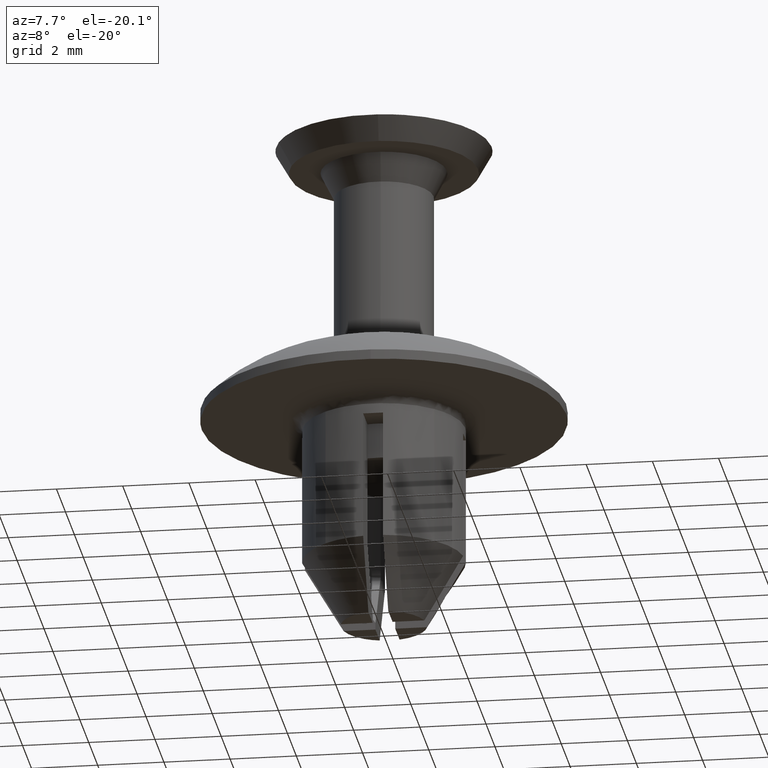
[diagram: clean part render]
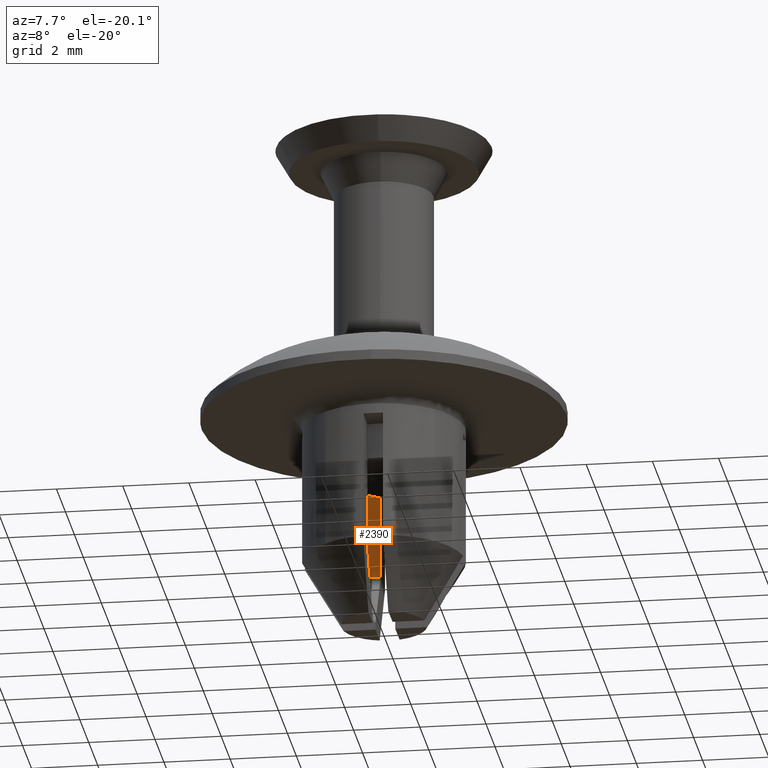
[diagram: same view with one face highlighted and labeled with its STEP entity id]
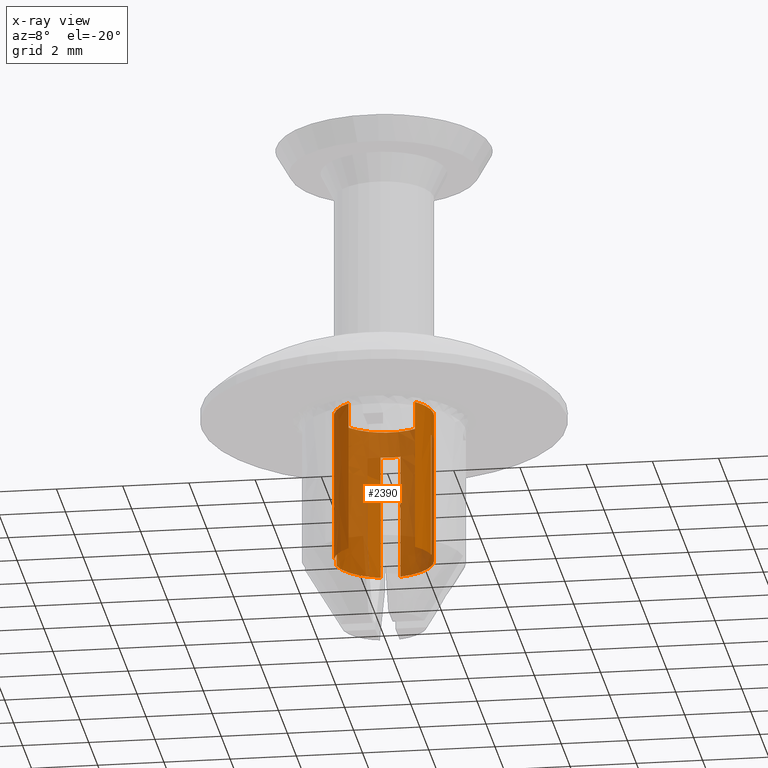
[diagram: x-ray of the same camera — body ghosted, the highlighted face saturated]
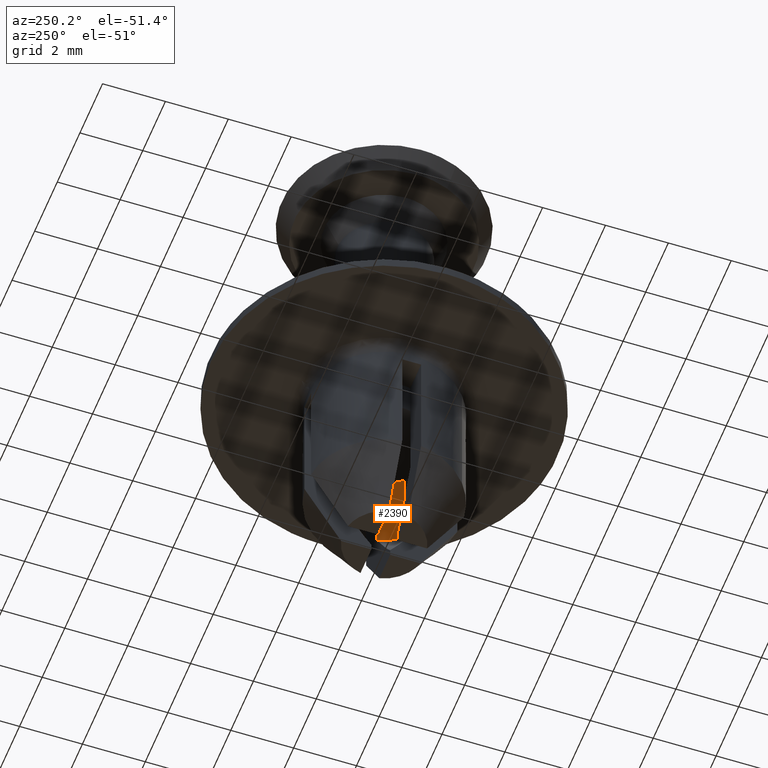
[diagram: same view with one face highlighted and labeled with its STEP entity id]
A machine part, auxiliary view. The second image highlights one B-rep face of the part: STEP entity #2390.
The next image is the same camera in x-ray: the body ghosted, the highlighted face saturated — about 52% of this face is hidden behind the body in this view.
A second angle (auxiliary view) of the same face is appended — the face is thin or edge-on in the first view.
In plain terms, the highlighted face is a freeform B-spline surface patch.
Its self-contained STEP definition (entity closure, byte-faithful):
#2046=CARTESIAN_POINT('',(-0.909661278325718,-1.192692902097409,-8.713397459621572));
#2047=VERTEX_POINT('',#2046);
#2063=CARTESIAN_POINT('',(-1.500000000000000,0.0,-8.713397459621570));
#2064=VERTEX_POINT('',#2063);
#2065=CARTESIAN_POINT('',(-0.909661278325718,-1.192692902097409,-8.713397459621572));
#2066=CARTESIAN_POINT('',(-1.500000000000001,-0.742444329930675,-8.713397459621570));
#2067=CARTESIAN_POINT('',(-1.500000000000000,0.0,-8.713397459621570));
#2075=(BOUNDED_CURVE()B_SPLINE_CURVE(2,(#2065,#2066,#2067),.UNSPECIFIED.,.F.,.U.)B_SPLINE_CURVE_WITH_KNOTS((3,3),(0.854777715446281,1.0),.UNSPECIFIED.)CURVE()GEOMETRIC_REPRESENTATION_ITEM()RATIONAL_B_SPLINE_CURVE((0.857386222114567,0.829861510534472,1.0))REPRESENTATION_ITEM(''));
#2076=EDGE_CURVE('',#2047,#2064,#2075,.T.);
#2078=CARTESIAN_POINT('',(-0.117688643602349,1.495376000599825,-8.713397459619642));
#2079=VERTEX_POINT('',#2078);
#2080=CARTESIAN_POINT('',(-1.500000000000000,0.0,-8.713397459621570));
#2081=CARTESIAN_POINT('',(-1.500000000000000,1.386585737467769,-8.713397459621572));
#2082=CARTESIAN_POINT('',(-0.117688643602349,1.495376000599825,-8.713397459619642));
#2090=(BOUNDED_CURVE()B_SPLINE_CURVE(2,(#2080,#2081,#2082),.UNSPECIFIED.,.F.,.U.)B_SPLINE_CURVE_WITH_KNOTS((3,3),(0.0,0.236331300630358),.UNSPECIFIED.)CURVE()GEOMETRIC_REPRESENTATION_ITEM()RATIONAL_B_SPLINE_CURVE((1.0,0.723120658608018,0.969723356166789))REPRESENTATION_ITEM(''));
#2091=EDGE_CURVE('',#2064,#2079,#2090,.T.);
#2137=CARTESIAN_POINT('',(1.500000000000000,0.0,-8.713397459621570));
#2138=VERTEX_POINT('',#2137);
#2139=CARTESIAN_POINT('',(-0.117688643602349,1.495376000599825,-8.713397459619642));
#2140=CARTESIAN_POINT('',(-0.058935160522058,1.500000000000000,-8.713397459621570));
#2141=CARTESIAN_POINT('',(0.0,1.500000000000000,-8.713397459621570));
#2142=CARTESIAN_POINT('',(1.500000000000000,1.500000000000000,-8.713397459621570));
#2143=CARTESIAN_POINT('',(1.500000000000000,0.0,-8.713397459621570));
#2151=(BOUNDED_CURVE()B_SPLINE_CURVE(2,(#2139,#2140,#2141,#2142,#2143),.UNSPECIFIED.,.F.,.U.)B_SPLINE_CURVE_WITH_KNOTS((3,2,3),(0.236331300630358,0.250000000000000,0.500000000000000),.UNSPECIFIED.)CURVE()GEOMETRIC_REPRESENTATION_ITEM()RATIONAL_B_SPLINE_CURVE((0.969723356166789,0.983986122578529,1.0,0.707106781186548,1.0))REPRESENTATION_ITEM(''));
#2152=EDGE_CURVE('',#2079,#2138,#2151,.T.);
#2154=CARTESIAN_POINT('',(1.079681682188331,-1.041291248953417,-8.713397459621572));
#2155=VERTEX_POINT('',#2154);
#2156=CARTESIAN_POINT('',(1.500000000000000,0.0,-8.713397459621570));
#2157=CARTESIAN_POINT('',(1.500000000000000,-0.605476537538896,-8.713397459621572));
#2158=CARTESIAN_POINT('',(1.079681682188331,-1.041291248953417,-8.713397459621572));
#2166=(BOUNDED_CURVE()B_SPLINE_CURVE(2,(#2156,#2157,#2158),.UNSPECIFIED.,.F.,.U.)B_SPLINE_CURVE_WITH_KNOTS((3,3),(0.500000000000000,0.622269076579493),.UNSPECIFIED.)CURVE()GEOMETRIC_REPRESENTATION_ITEM()RATIONAL_B_SPLINE_CURVE((1.0,0.856752866397135,0.853623290780523))REPRESENTATION_ITEM(''));
#2167=EDGE_CURVE('',#2138,#2155,#2166,.T.);
#2199=CARTESIAN_POINT('',(-0.909662178099551,-1.192692215844129,-8.597858983848633));
#2200=CARTESIAN_POINT('',(-0.978749863560907,-1.139999279978732,-8.597858983848633));
#2201=CARTESIAN_POINT('',(-1.041291316395715,-1.079681617144090,-8.597858983848633));
#2202=CARTESIAN_POINT('',(-2.120972933539805,-0.038390300748376,-8.597858983848633));
#2203=CARTESIAN_POINT('',(-1.079681617144090,1.041291316395715,-8.597858983848633));
#2204=CARTESIAN_POINT('',(-0.038390300748376,2.120972933539805,-8.597858983848633));
#2205=CARTESIAN_POINT('',(1.041291316395715,1.079681617144090,-8.597858983848633));
#2206=CARTESIAN_POINT('',(2.120972933539805,0.038390300748376,-8.597858983848633));
#2207=CARTESIAN_POINT('',(1.079681617144090,-1.041291316395715,-8.597858983848633));
#2208=CARTESIAN_POINT('',(-0.909662178099551,-1.192692215844129,-13.453363428206265));
#2209=CARTESIAN_POINT('',(-0.978749863560907,-1.139999279978732,-13.453363428206261));
#2210=CARTESIAN_POINT('',(-1.041291316395715,-1.079681617144090,-13.453363428206259));
#2211=CARTESIAN_POINT('',(-2.120972933539805,-0.038390300748376,-13.453363428206259));
#2212=CARTESIAN_POINT('',(-1.079681617144090,1.041291316395715,-13.453363428206259));
#2213=CARTESIAN_POINT('',(-0.038390300748376,2.120972933539805,-13.453363428206259));
#2214=CARTESIAN_POINT('',(1.041291316395715,1.079681617144090,-13.453363428206259));
#2215=CARTESIAN_POINT('',(2.120972933539805,0.038390300748376,-13.453363428206259));
#2216=CARTESIAN_POINT('',(1.079681617144090,-1.041291316395715,-13.453363428206259));
#2224=(BOUNDED_SURFACE()B_SPLINE_SURFACE(2,1,((#2199,#2208),(#2200,#2209),(#2201,#2210),(#2202,#2211),(#2203,#2212),(#2204,#2213),(#2205,#2214),(#2206,#2215),(#2207,#2216)),.UNSPECIFIED.,.F.,.F.,.U.)B_SPLINE_SURFACE_WITH_KNOTS((3,2,2,2,3),(2,2),(1.445132620651305,1.570796326794897,3.141592653589793,4.712388980384690,6.283185307179586),(0.0,4.855504444357628),.UNSPECIFIED.)GEOMETRIC_REPRESENTATION_ITEM()RATIONAL_B_SPLINE_SURFACE(((0.956886118190660,0.956886118190660),(0.976568542494924,0.976568542494924),(1.0,1.0),(0.707106781186548,0.707106781186548),(1.0,1.0),(0.707106781186548,0.707106781186548),(1.0,1.0),(0.707106781186548,0.707106781186548),(1.0,1.0)))REPRESENTATION_ITEM('')SURFACE());
#2225=ORIENTED_EDGE('',*,*,#2076,.F.);
#2226=CARTESIAN_POINT('',(-0.909661955551315,-1.192692385580824,-13.334936490539000));
#2227=VERTEX_POINT('',#2226);
#2228=CARTESIAN_POINT('',(-0.909661278325718,-1.192692902097409,-8.713397459621572));
#2229=CARTESIAN_POINT('',(-0.909661955551315,-1.192692385580824,-13.334936490539000));
#2230=QUASI_UNIFORM_CURVE('',1,(#2228,#2229),.UNSPECIFIED.,.F.,.U.);
#2231=EDGE_CURVE('',#2047,#2227,#2230,.T.);
#2232=ORIENTED_EDGE('',*,*,#2231,.T.);
#2233=CARTESIAN_POINT('',(-1.469693845669900,-0.300000000000027,-13.334936490539000));
#2234=VERTEX_POINT('',#2233);
#2235=CARTESIAN_POINT('',(-0.909661955551315,-1.192692385580825,-13.334936490538999));
#2236=CARTESIAN_POINT('',(-1.357139098075330,-0.851403399468878,-13.334936490538995));
#2237=CARTESIAN_POINT('',(-1.469693845669901,-0.300000000000028,-13.334936490539000));
#2245=(BOUNDED_CURVE()B_SPLINE_CURVE(2,(#2235,#2236,#2237),.UNSPECIFIED.,.F.,.U.)B_SPLINE_CURVE_WITH_KNOTS((3,3),(0.388543887293857,1.0),.UNSPECIFIED.)CURVE()GEOMETRIC_REPRESENTATION_ITEM()RATIONAL_B_SPLINE_CURVE((0.921239093527759,0.898646061554593,1.0))REPRESENTATION_ITEM(''));
#2246=EDGE_CURVE('',#2227,#2234,#2245,.T.);
#2247=ORIENTED_EDGE('',*,*,#2246,.T.);
#2248=CARTESIAN_POINT('',(-1.469693845669902,-0.300000000000027,-9.513397459621730));
#2249=VERTEX_POINT('',#2248);
#2250=CARTESIAN_POINT('',(-1.469693845669902,-0.300000000000027,-9.513397459621730));
#2251=CARTESIAN_POINT('',(-1.469693845669900,-0.300000000000027,-13.334936490539000));
#2252=QUASI_UNIFORM_CURVE('',1,(#2250,#2251),.UNSPECIFIED.,.F.,.U.);
#2253=EDGE_CURVE('',#2249,#2234,#2252,.T.);
#2254=ORIENTED_EDGE('',*,*,#2253,.F.);
#2255=CARTESIAN_POINT('',(-1.469693845669902,0.300000000000018,-9.513397459621730));
#2256=VERTEX_POINT('',#2255);
#2257=CARTESIAN_POINT('',(-1.469693845669901,-0.300000000000027,-9.513397459621730));
#2258=CARTESIAN_POINT('',(-1.530931089239491,-4.282599E-015,-9.513397459621730));
#2259=CARTESIAN_POINT('',(-1.469693845669903,0.300000000000018,-9.513397459621730));
#2267=(BOUNDED_CURVE()B_SPLINE_CURVE(2,(#2257,#2258,#2259),.UNSPECIFIED.,.F.,.U.)CURVE()GEOMETRIC_REPRESENTATION_ITEM()QUASI_UNIFORM_CURVE()RATIONAL_B_SPLINE_CURVE((1.0,0.979795897113268,1.0))REPRESENTATION_ITEM(''));
#2268=EDGE_CURVE('',#2249,#2256,#2267,.T.);
#2269=ORIENTED_EDGE('',*,*,#2268,.T.);
#2270=CARTESIAN_POINT('',(-1.469693845669902,0.300000000000018,-13.334936490539000));
#2271=VERTEX_POINT('',#2270);
#2272=CARTESIAN_POINT('',(-1.469693845669902,0.300000000000018,-13.334936490539000));
#2273=CARTESIAN_POINT('',(-1.469693845669902,0.300000000000018,-9.513397459621730));
#2274=QUASI_UNIFORM_CURVE('',1,(#2272,#2273),.UNSPECIFIED.,.F.,.U.);
#2275=EDGE_CURVE('',#2271,#2256,#2274,.T.);
#2276=ORIENTED_EDGE('',*,*,#2275,.F.);
#2277=CARTESIAN_POINT('',(-0.299999999999975,1.469693845669912,-13.334936490539000));
#2278=VERTEX_POINT('',#2277);
#2279=CARTESIAN_POINT('',(-1.469693845669903,0.300000000000019,-13.334936490539000));
#2280=CARTESIAN_POINT('',(-1.271406353989012,1.271406353989050,-13.334936490539002));
#2281=CARTESIAN_POINT('',(-0.299999999999975,1.469693845669912,-13.334936490539000));
#2289=(BOUNDED_CURVE()B_SPLINE_CURVE(2,(#2279,#2280,#2281),.UNSPECIFIED.,.F.,.U.)CURVE()GEOMETRIC_REPRESENTATION_ITEM()QUASI_UNIFORM_CURVE()RATIONAL_B_SPLINE_CURVE((1.0,0.834241679264859,1.0))REPRESENTATION_ITEM(''));
#2290=EDGE_CURVE('',#2271,#2278,#2289,.T.);
#2291=ORIENTED_EDGE('',*,*,#2290,.T.);
#2292=CARTESIAN_POINT('',(-0.299999999999975,1.469693845669912,-9.513397459621730));
#2293=VERTEX_POINT('',#2292);
#2294=CARTESIAN_POINT('',(-0.299999999999975,1.469693845669912,-9.513397459621730));
#2295=CARTESIAN_POINT('',(-0.299999999999975,1.469693845669912,-13.334936490539000));
#2296=QUASI_UNIFORM_CURVE('',1,(#2294,#2295),.UNSPECIFIED.,.F.,.U.);
#2297=EDGE_CURVE('',#2293,#2278,#2296,.T.);
#2298=ORIENTED_EDGE('',*,*,#2297,.F.);
#2299=CARTESIAN_POINT('',(0.300000000000011,1.469693845669904,-9.513397459621730));
#2300=VERTEX_POINT('',#2299);
#2301=CARTESIAN_POINT('',(-0.299999999999974,1.469693845669912,-9.513397459621730));
#2302=CARTESIAN_POINT('',(1.946143E-014,1.530931089239485,-9.513397459621730));
#2303=CARTESIAN_POINT('',(0.300000000000012,1.469693845669905,-9.513397459621730));
#2311=(BOUNDED_CURVE()B_SPLINE_CURVE(2,(#2301,#2302,#2303),.UNSPECIFIED.,.F.,.U.)CURVE()GEOMETRIC_REPRESENTATION_ITEM()QUASI_UNIFORM_CURVE()RATIONAL_B_SPLINE_CURVE((1.0,0.979795897113272,1.0))REPRESENTATION_ITEM(''));
#2312=EDGE_CURVE('',#2293,#2300,#2311,.T.);
#2313=ORIENTED_EDGE('',*,*,#2312,.T.);
#2314=CARTESIAN_POINT('',(0.300000000000011,1.469693845669904,-13.334936490539000));
#2315=VERTEX_POINT('',#2314);
#2316=CARTESIAN_POINT('',(0.300000000000011,1.469693845669904,-13.334936490539000));
#2317=CARTESIAN_POINT('',(0.300000000000011,1.469693845669904,-9.513397459621730));
#2318=QUASI_UNIFORM_CURVE('',1,(#2316,#2317),.UNSPECIFIED.,.F.,.U.);
#2319=EDGE_CURVE('',#2315,#2300,#2318,.T.);
#2320=ORIENTED_EDGE('',*,*,#2319,.F.);
#2321=CARTESIAN_POINT('',(1.469693845669902,0.300000000000018,-13.334936490539000));
#2322=VERTEX_POINT('',#2321);
#2323=CARTESIAN_POINT('',(0.300000000000011,1.469693845669905,-13.334936490539000));
#2324=CARTESIAN_POINT('',(1.271406353989018,1.271406353989024,-13.334936490539004));
#2325=CARTESIAN_POINT('',(1.469693845669903,0.300000000000019,-13.334936490539000));
#2333=(BOUNDED_CURVE()B_SPLINE_CURVE(2,(#2323,#2324,#2325),.UNSPECIFIED.,.F.,.U.)CURVE()GEOMETRIC_REPRESENTATION_ITEM()QUASI_UNIFORM_CURVE()RATIONAL_B_SPLINE_CURVE((1.0,0.834241679264866,1.0))REPRESENTATION_ITEM(''));
#2334=EDGE_CURVE('',#2315,#2322,#2333,.T.);
#2335=ORIENTED_EDGE('',*,*,#2334,.T.);
#2336=CARTESIAN_POINT('',(1.469693845669902,0.300000000000018,-9.513397459621730));
#2337=VERTEX_POINT('',#2336);
#2338=CARTESIAN_POINT('',(1.469693845669902,0.300000000000018,-9.513397459621730));
#2339=CARTESIAN_POINT('',(1.469693845669902,0.300000000000018,-13.334936490539000));
#2340=QUASI_UNIFORM_CURVE('',1,(#2338,#2339),.UNSPECIFIED.,.F.,.U.);
#2341=EDGE_CURVE('',#2337,#2322,#2340,.T.);
#2342=ORIENTED_EDGE('',*,*,#2341,.F.);
#2343=CARTESIAN_POINT('',(1.469693845669910,-0.299999999999985,-9.513397459621730));
#2344=VERTEX_POINT('',#2343);
#2345=CARTESIAN_POINT('',(1.469693845669903,0.300000000000019,-9.513397459621730));
#2346=CARTESIAN_POINT('',(1.530931089239487,1.783513E-014,-9.513397459621730));
#2347=CARTESIAN_POINT('',(1.469693845669910,-0.299999999999984,-9.513397459621730));
#2355=(BOUNDED_CURVE()B_SPLINE_CURVE(2,(#2345,#2346,#2347),.UNSPECIFIED.,.F.,.U.)CURVE()GEOMETRIC_REPRESENTATION_ITEM()QUASI_UNIFORM_CURVE()RATIONAL_B_SPLINE_CURVE((1.0,0.979795897113271,1.0))REPRESENTATION_ITEM(''));
#2356=EDGE_CURVE('',#2337,#2344,#2355,.T.);
#2357=ORIENTED_EDGE('',*,*,#2356,.T.);
#2358=CARTESIAN_POINT('',(1.469693845669910,-0.299999999999985,-13.334936490539000));
#2359=VERTEX_POINT('',#2358);
#2360=CARTESIAN_POINT('',(1.469693845669910,-0.299999999999985,-13.334936490539000));
#2361=CARTESIAN_POINT('',(1.469693845669910,-0.299999999999985,-9.513397459621730));
#2362=QUASI_UNIFORM_CURVE('',1,(#2360,#2361),.UNSPECIFIED.,.F.,.U.);
#2363=EDGE_CURVE('',#2359,#2344,#2362,.T.);
#2364=ORIENTED_EDGE('',*,*,#2363,.F.);
#2365=CARTESIAN_POINT('',(1.079681700670657,-1.041291229789679,-13.334936490539000));
#2366=VERTEX_POINT('',#2365);
#2367=CARTESIAN_POINT('',(1.469693845669910,-0.299999999999984,-13.334936490539000));
#2368=CARTESIAN_POINT('',(1.382461764077181,-0.727348178206040,-13.334936490539000));
#2369=CARTESIAN_POINT('',(1.079681700670657,-1.041291229789679,-13.334936490538997));
#2377=(BOUNDED_CURVE()B_SPLINE_CURVE(2,(#2367,#2368,#2369),.UNSPECIFIED.,.F.,.U.)B_SPLINE_CURVE_WITH_KNOTS((3,3),(0.0,0.484948309155119),.UNSPECIFIED.)CURVE()GEOMETRIC_REPRESENTATION_ITEM()RATIONAL_B_SPLINE_CURVE((1.0,0.919615782631102,0.917195945853813))REPRESENTATION_ITEM(''));
#2378=EDGE_CURVE('',#2359,#2366,#2377,.T.);
#2379=ORIENTED_EDGE('',*,*,#2378,.T.);
#2380=CARTESIAN_POINT('',(1.079681682188331,-1.041291248953417,-8.713397459621572));
#2381=CARTESIAN_POINT('',(1.079681700670657,-1.041291229789679,-13.334936490539000));
#2382=QUASI_UNIFORM_CURVE('',1,(#2380,#2381),.UNSPECIFIED.,.F.,.U.);
#2383=EDGE_CURVE('',#2155,#2366,#2382,.T.);
#2384=ORIENTED_EDGE('',*,*,#2383,.F.);
#2385=ORIENTED_EDGE('',*,*,#2167,.F.);
#2386=ORIENTED_EDGE('',*,*,#2152,.F.);
#2387=ORIENTED_EDGE('',*,*,#2091,.F.);
#2388=EDGE_LOOP('',(#2225,#2232,#2247,#2254,#2269,#2276,#2291,#2298,#2313,#2320,#2335,#2342,#2357,#2364,#2379,#2384,#2385,#2386,#2387));
#2389=FACE_OUTER_BOUND('',#2388,.T.);
#2390=ADVANCED_FACE('',(#2389),#2224,.F.);